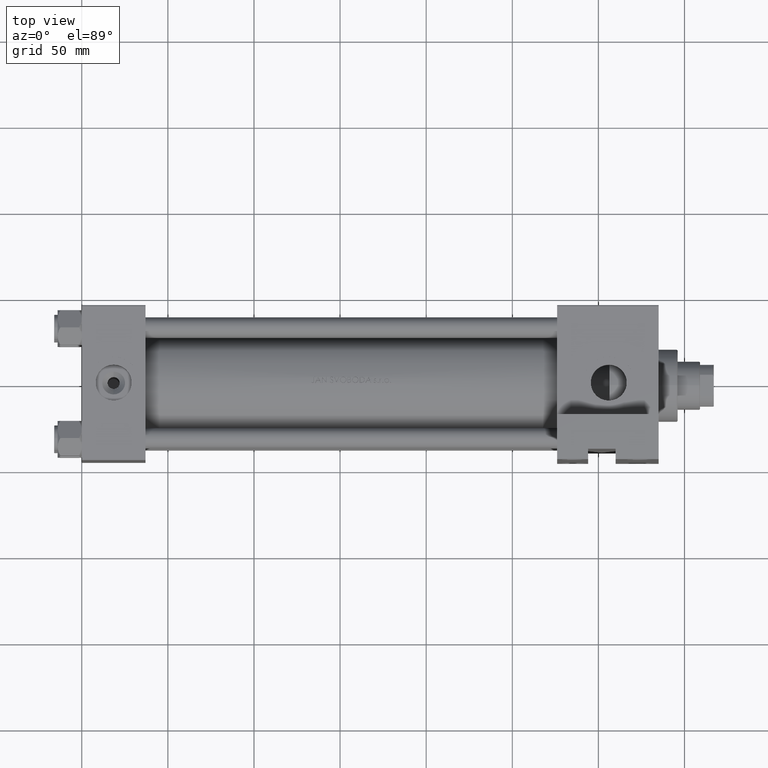
[diagram: clean part render]
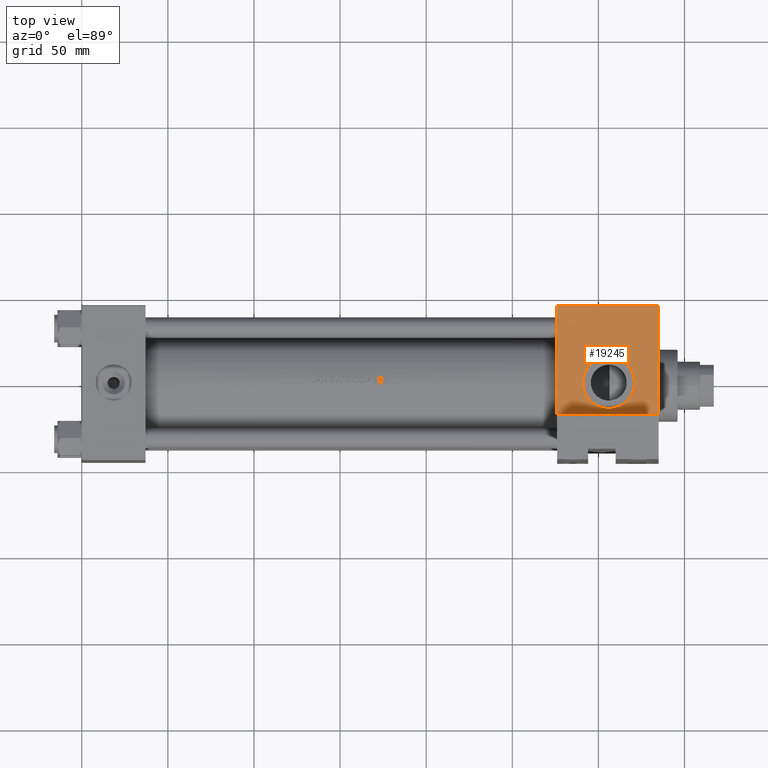
[diagram: same view with one face highlighted and labeled with its STEP entity id]
A machine part, top view. The second image highlights one B-rep face of the part: STEP entity #19245.
In plain terms, the highlighted planar face has unit normal (0, 0, -1).
Its self-contained STEP definition (entity closure, byte-faithful):
#375 = CARTESIAN_POINT ( 'NONE',  ( 305.9999999999999432, -45.00000000000000000, -3.469446951953614978E-15 ) ) ;
#1101 = DIRECTION ( 'NONE',  ( 0.000000000000000000, -1.000000000000000000, -8.673617379884036705E-17 ) ) ;
#1417 = DIRECTION ( 'NONE',  ( 1.000000000000000000, 0.000000000000000000, 0.000000000000000000 ) ) ;
#1842 = EDGE_CURVE ( 'NONE', #35383, #21531, #32325, .T. ) ;
#1982 = AXIS2_PLACEMENT_3D ( 'NONE', #38132, #4403, #15734 ) ;
#2540 = CARTESIAN_POINT ( 'NONE',  ( 334.9999999999999432, -45.00000000000000000, 44.99999999999998579 ) ) ;
#2568 = ORIENTED_EDGE ( 'NONE', *, *, #14144, .F. ) ;
#2617 = LINE ( 'NONE', #17953, #36291 ) ;
#3337 = CARTESIAN_POINT ( 'NONE',  ( 305.9999999999999432, -45.00000000000000000, -3.469446951953614978E-15 ) ) ;
#4342 = ORIENTED_EDGE ( 'NONE', *, *, #32504, .F. ) ;
#4403 = DIRECTION ( 'NONE',  ( -0.000000000000000000, 1.000000000000000000, 7.709882115452478166E-17 ) ) ;
#4451 = CARTESIAN_POINT ( 'NONE',  ( 334.9999999999999432, -45.00000000000000000, 44.49999999999998579 ) ) ;
#4492 = VERTEX_POINT ( 'NONE', #28032 ) ;
#6655 = CARTESIAN_POINT ( 'NONE',  ( 275.9999999999999432, -45.00000000000000000, 44.49999999999998579 ) ) ;
#7135 = VERTEX_POINT ( 'NONE', #4451 ) ;
#8183 = FACE_BOUND ( 'NONE', #27252, .T. ) ;
#9693 = CARTESIAN_POINT ( 'NONE',  ( 275.9999999999999432, -45.00000000000000000, -19.00000000000000000 ) ) ;
#11377 = DIRECTION ( 'NONE',  ( -1.000000000000000000, 0.000000000000000000, 0.000000000000000000 ) ) ;
#11474 = AXIS2_PLACEMENT_3D ( 'NONE', #3337, #37044, #33246 ) ;
#12263 = CIRCLE ( 'NONE', #11474, 15.00000000000002487 ) ;
#14144 = EDGE_CURVE ( 'NONE', #21396, #4492, #12263, .T. ) ;
#14246 = EDGE_CURVE ( 'NONE', #7135, #40580, #34482, .T. ) ;
#15734 = DIRECTION ( 'NONE',  ( 0.000000000000000000, -7.709882115452478166E-17, 1.000000000000000000 ) ) ;
#16706 = ORIENTED_EDGE ( 'NONE', *, *, #48885, .F. ) ;
#17953 = CARTESIAN_POINT ( 'NONE',  ( 275.9999999999999432, -45.00000000000000000, 44.99999999999998579 ) ) ;
#18709 = VECTOR ( 'NONE', #11377, 1000.000000000000000 ) ;
#19230 = EDGE_LOOP ( 'NONE', ( #16706, #41490, #26948, #48123 ) ) ;
#19245 = ADVANCED_FACE ( 'NONE', ( #8183, #45922 ), #38873, .F. ) ;
#21396 = VERTEX_POINT ( 'NONE', #43535 ) ;
#21531 = VERTEX_POINT ( 'NONE', #37873 ) ;
#21713 = DIRECTION ( 'NONE',  ( 0.000000000000000000, 7.709882115452478166E-17, -1.000000000000000000 ) ) ;
#23976 = AXIS2_PLACEMENT_3D ( 'NONE', #375, #1101, #34549 ) ;
#24149 = CARTESIAN_POINT ( 'NONE',  ( 275.9999999999999432, -45.00000000000000000, -19.00000000000000000 ) ) ;
#25664 = LINE ( 'NONE', #2540, #33847 ) ;
#25917 = DIRECTION ( 'NONE',  ( 0.000000000000000000, 7.709882115452478166E-17, -1.000000000000000000 ) ) ;
#26362 = VECTOR ( 'NONE', #1417, 1000.000000000000000 ) ;
#26948 = ORIENTED_EDGE ( 'NONE', *, *, #49365, .T. ) ;
#27252 = EDGE_LOOP ( 'NONE', ( #2568, #4342 ) ) ;
#28032 = CARTESIAN_POINT ( 'NONE',  ( 305.9999999999999432, -45.00000000000000000, 15.00000000000002132 ) ) ;
#32325 = LINE ( 'NONE', #9693, #26362 ) ;
#32504 = EDGE_CURVE ( 'NONE', #4492, #21396, #45699, .T. ) ;
#33246 = DIRECTION ( 'NONE',  ( 0.000000000000000000, 0.000000000000000000, -1.000000000000000000 ) ) ;
#33847 = VECTOR ( 'NONE', #25917, 1000.000000000000000 ) ;
#34482 = LINE ( 'NONE', #42291, #18709 ) ;
#34549 = DIRECTION ( 'NONE',  ( 0.000000000000000000, 0.000000000000000000, -1.000000000000000000 ) ) ;
#35383 = VERTEX_POINT ( 'NONE', #24149 ) ;
#36291 = VECTOR ( 'NONE', #21713, 1000.000000000000000 ) ;
#37044 = DIRECTION ( 'NONE',  ( 0.000000000000000000, -1.000000000000000000, -8.673617379884036705E-17 ) ) ;
#37873 = CARTESIAN_POINT ( 'NONE',  ( 334.9999999999999432, -44.99999999999999289, -18.99999999999997513 ) ) ;
#38132 = CARTESIAN_POINT ( 'NONE',  ( 334.9999999999999432, -45.00000000000000000, 44.99999999999998579 ) ) ;
#38873 = PLANE ( 'NONE',  #1982 ) ;
#40580 = VERTEX_POINT ( 'NONE', #6655 ) ;
#41490 = ORIENTED_EDGE ( 'NONE', *, *, #14246, .T. ) ;
#42291 = CARTESIAN_POINT ( 'NONE',  ( 334.9999999999999432, -45.00000000000000000, 44.49999999999998579 ) ) ;
#43535 = CARTESIAN_POINT ( 'NONE',  ( 305.9999999999999432, -45.00000000000000000, -15.00000000000002842 ) ) ;
#45699 = CIRCLE ( 'NONE', #23976, 15.00000000000002487 ) ;
#45922 = FACE_OUTER_BOUND ( 'NONE', #19230, .T. ) ;
#48123 = ORIENTED_EDGE ( 'NONE', *, *, #1842, .T. ) ;
#48885 = EDGE_CURVE ( 'NONE', #7135, #21531, #25664, .T. ) ;
#49365 = EDGE_CURVE ( 'NONE', #40580, #35383, #2617, .T. ) ;